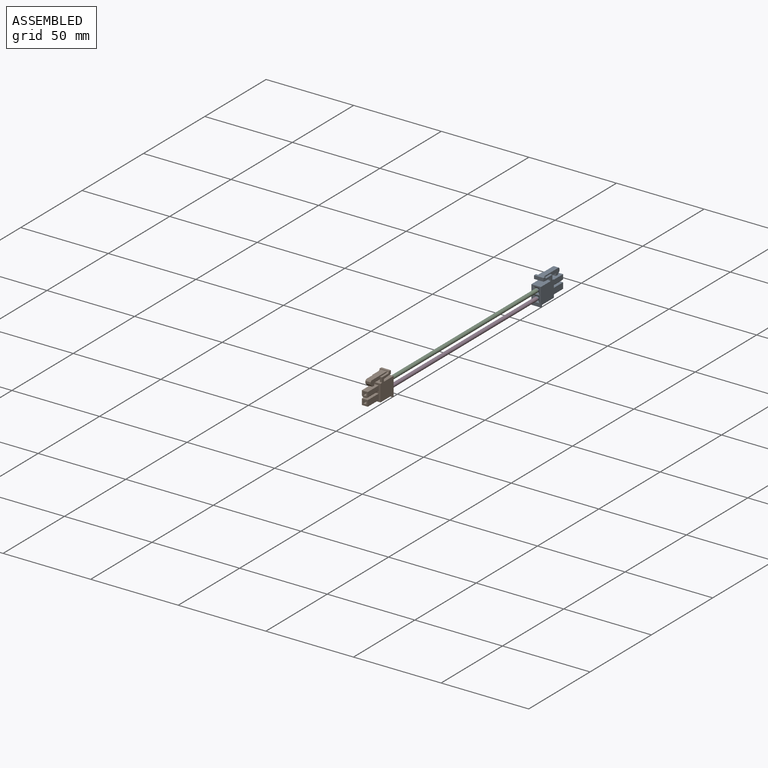
[diagram: assembled view]
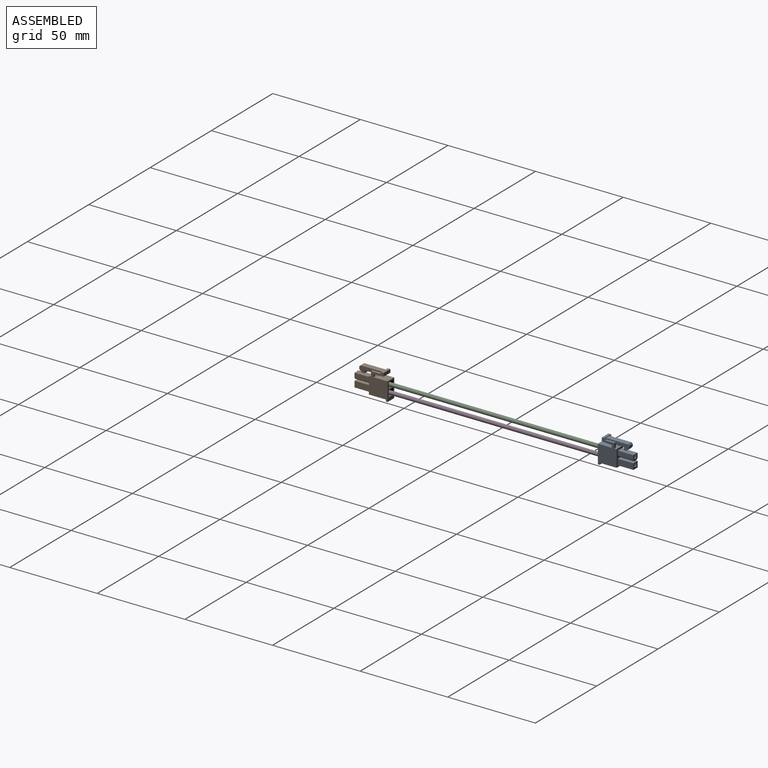
[diagram: assembled view, second angle]
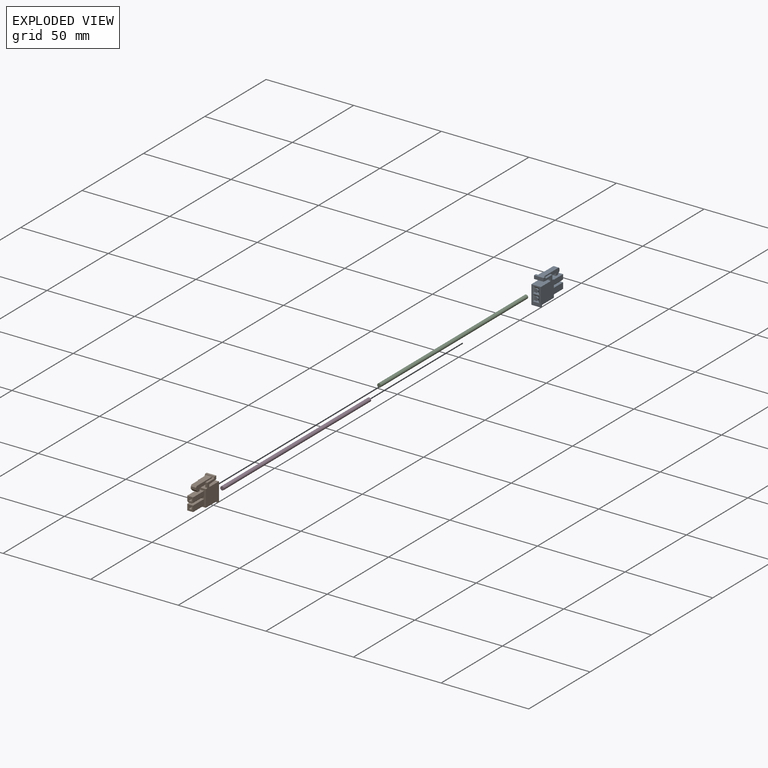
[diagram: exploded view]
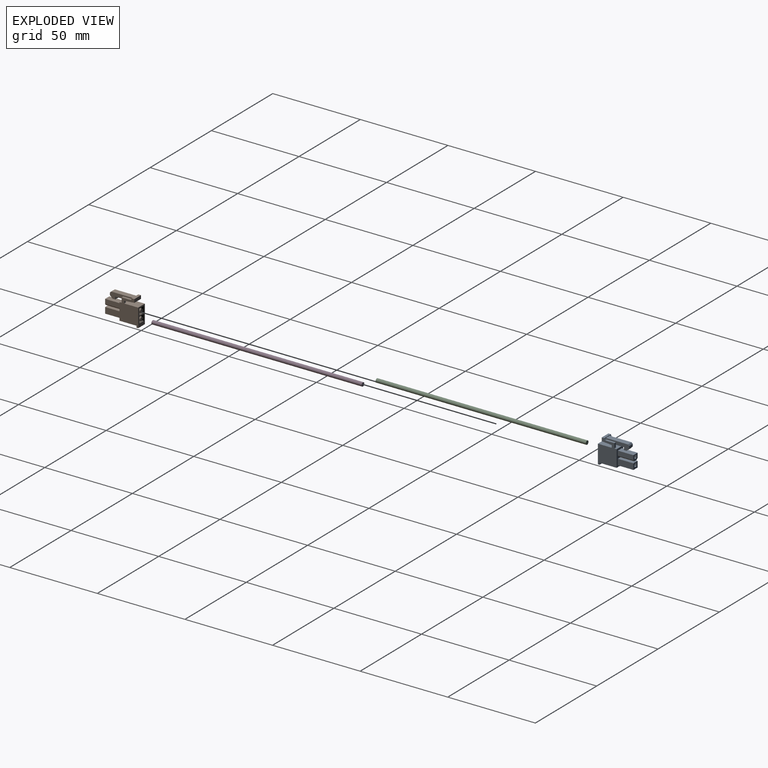
[diagram: exploded view, second angle]
ASSEMBLY  parts=4 mates=4
PART A: 117 faces, bbox 5.4x14.4x19.6 mm
  f0: plane 17.6x0.38mm, normal (0.71,0.71,0), area 5.9mm2, adj f1,f52,f77,f103,f108,f115
  f1: plane 17.6x0.75mm, normal (0,1,0), area 13.2mm2, adj f0,f2,f52,f115
  f2: plane 17.6x0.38mm, normal (-0.71,0.71,0), area 5.9mm2, adj f1,f52,f78,f96,f104,f115
  f3: plane 17.6x0.38mm, normal (0.71,0.71,0), area 5.9mm2, adj f5,f51,f67,f73,f84,f112
  f4: plane 17.6x0.38mm, normal (-0.71,0.71,0), area 5.9mm2, adj f5,f51,f74,f83,f85,f112
  f5: plane 17.6x0.75mm, normal (0,1,0), area 13.2mm2, adj f3,f4,f51,f112
  f6: plane 14.4x10.7mm, normal (-1,0,0), area 116.3mm2, adj f7,f9,f11,f13,f15,f18,f20,f25
  f7: plane 10.7x5.4mm, normal (0,1,0), area 52.7mm2, adj f6,f8,f9,f10,f16,f17,f18,f23
  f8: cylinder r=0.3mm len=1.2mm, axis (1,0,0), area 0.6mm2, adj f7,f10,f14,f16
  f9: cylinder r=0.3mm len=1.2mm, axis (1,0,0), area 0.6mm2, adj f6,f7,f15,f23
  f10: plane 3.13x1.5mm, normal (-1,0,0), area 2.4mm2, adj f7,f8,f11,f12,f14,f17,f19,f22
  f11: plane 5.57x5.4mm, normal (0,-1,-0.09), area 26.7mm2, adj f6,f10,f12,f13,f16,f22,f23,f37
  f12: cylinder r=0.2mm len=1.2mm, axis (1,0,0), area 0.4mm2, adj f10,f11,f14,f16
  f13: cylinder r=0.2mm len=1.2mm, axis (1,0,0), area 0.4mm2, adj f6,f11,f15,f23
  f14: plane 1.2x0.9mm, normal (0,0,-1), area 1.1mm2, adj f8,f10,f12,f16
  f15: plane 1.2x0.9mm, normal (0,0,-1), area 1.1mm2, adj f6,f9,f13,f23
  f16: plane 14.4x10.7mm, normal (1,0,0), area 116.3mm2, adj f7,f8,f11,f12,f14,f17,f19,f26
  f17: cylinder r=0.3mm len=1.2mm, axis (1,0,0), area 0.6mm2, adj f7,f10,f16,f19
  f18: cylinder r=0.3mm len=1.2mm, axis (1,0,0), area 0.6mm2, adj f6,f7,f20,f23
  f19: plane 2.5x1.2mm, normal (0,0,1), area 3mm2, adj f10,f16,f17,f21,f26
  f20: plane 2.5x1.2mm, normal (0,0,1), area 3mm2, adj f6,f18,f23,f24,f25
  f21: plane 13.3x3.5mm, normal (1,0,0), area 22mm2, adj f19,f22,f26,f28,f30,f31,f32,f33
  f22: plane 7.52x3mm, normal (0,-1,0), area 22.5mm2, adj f10,f11,f21,f23,f24,f35
  f23: plane 3.13x1.5mm, normal (1,0,0), area 2.4mm2, adj f7,f9,f11,f13,f15,f18,f20,f22
  f24: plane 13.3x3.5mm, normal (-1,0,0), area 22mm2, adj f20,f22,f25,f27,f30,f31,f32,f33
  f25: plane 5.25x1.2mm, normal (0,1,0), area 6.3mm2, adj f6,f20,f24,f27
  f26: plane 5.25x1.2mm, normal (0,1,0), area 6.3mm2, adj f16,f19,f21,f28
  f27: plane 1.2x0.7mm, normal (0,0.58,0.81), area 1mm2, adj f6,f24,f25,f29
  f28: plane 1.2x0.7mm, normal (0,0.58,0.81), area 1mm2, adj f16,f21,f26,f29
  f29: plane 5.4x0.3mm, normal (0,0,1), area 1.6mm2, adj f6,f16,f27,f28,f30,f36
  f30: plane 12.6x3mm, normal (0,1,0), area 37.8mm2, adj f21,f24,f29,f31
  f31: plane 3x0.7mm, normal (0,0.71,0.71), area 3mm2, adj f21,f24,f30,f32
  f32: plane 3x1.3mm, normal (0,0,1), area 3.9mm2, adj f21,f24,f31,f33
  f33: plane 3x1.5mm, normal (0,-0.71,0.71), area 6.4mm2, adj f21,f24,f32,f34
  f34: plane 3x1.5mm, normal (0,-1,0), area 4.5mm2, adj f21,f24,f33,f35
  f35: plane 3x1.5mm, normal (0,0.09,-1), area 4.5mm2, adj f21,f22,f24,f34
  f36: plane 5.4x1.5mm, normal (0,1,0), area 8.1mm2, adj f6,f16,f29,f37
  f37: plane 5.4x1.91mm, normal (0,0,-1), area 10.3mm2, adj f6,f11,f16,f36
  f38: plane 10.6x5.4mm, normal (0,0,-1), area 31.3mm2, adj f6,f7,f16,f39,f68,f69,f70,f71
  f39: plane 5.4x1mm, normal (0,-1,0), area 5.4mm2, adj f6,f16,f38,f40
  f40: plane 5.4x1mm, normal (0,0,1), area 5.3mm2, adj f6,f16,f39,f41,f42,f43
  f41: cylinder r=0.25mm len=9.7mm, axis (0,0,-1), area 7.6mm2, adj f40,f42,f43,f44
  f42: plane 9.7x2.45mm, normal (0,-1,0), area 23.8mm2, adj f16,f40,f41,f44
  f43: plane 9.7x2.45mm, normal (0,-1,0), area 23.8mm2, adj f6,f40,f41,f44
  f44: plane 9.85x5.4mm, normal (0,0,1), area 29.4mm2, adj f6,f7,f16,f41,f42,f43,f45,f46
  f45: plane 8.9x2.65mm, normal (-1,0,0), area 23.6mm2, adj f44,f46,f50,f51
  f46: plane 8.9x3.4mm, normal (0,1,0), area 30.3mm2, adj f44,f45,f47,f51
  f47: plane 8.9x2.65mm, normal (1,0,0), area 23.6mm2, adj f44,f46,f48,f51
  f48: plane 8.9x0.75mm, normal (0.71,-0.71,0), area 9.4mm2, adj f44,f47,f49,f51
  f49: plane 8.9x1.9mm, normal (0,-1,0), area 16.9mm2, adj f44,f48,f50,f51
  f50: plane 8.9x0.75mm, normal (-0.71,-0.71,0), area 9.4mm2, adj f44,f45,f49,f51
  f51: plane 3.4x3.4mm, normal (0,0,1), area 8.2mm2, adj f3,f4,f5,f45,f46,f47,f48,f49
  f52: plane 3.4x3.4mm, normal (0,0,1), area 8.7mm2, adj f0,f1,f2,f53,f54,f55,f56,f90
  f53: plane 8.9x3.4mm, normal (0,-1,0), area 30.3mm2, adj f44,f52,f54,f56
  f54: plane 8.9x3.4mm, normal (-1,0,0), area 30.3mm2, adj f44,f52,f53,f55
  f55: plane 8.9x3.4mm, normal (0,1,0), area 30.3mm2, adj f44,f52,f54,f56
  f56: plane 8.9x3.4mm, normal (1,0,0), area 30.3mm2, adj f44,f52,f53,f55
  f57: plane 9.9x0.5mm, normal (1,0,0), area 5mm2, adj f51,f59,f61,f63
  f58: plane 9.9x0.15mm, normal (0,-1,0), area 1mm2, adj f51,f60,f64,f76,f83,f89
  f59: plane 9.9x0.15mm, normal (0,-1,0), area 1mm2, adj f51,f57,f63,f67,f75,f87
  f60: plane 9.9x0.5mm, normal (-1,0,0), area 5mm2, adj f51,f58,f62,f64
  f61: plane 9.9x0.15mm, normal (0,1,0), area 1mm2, adj f51,f57,f63,f67,f73,f86
  f62: plane 9.9x0.15mm, normal (0,1,0), area 1mm2, adj f51,f60,f64,f74,f83,f88
  f63: plane 0.5x0.15mm, normal (0,0,1), area 0.1mm2, adj f57,f59,f61,f67
  f64: plane 0.5x0.15mm, normal (0,0,1), area 0.1mm2, adj f58,f60,f62,f83
  f65: plane 0.5x0.15mm, normal (0,0,1), area 0.1mm2, adj f91,f93,f95,f96
  f66: plane 0.5x0.15mm, normal (0,0,1), area 0.1mm2, adj f90,f92,f94,f108
  f67: plane 9.7x1.38mm, normal (1,0,0), area 11.6mm2, adj f3,f59,f61,f63,f68,f72,f73,f75
  f68: plane 3.65x1.05mm, normal (0.69,0,-0.72), area 3.4mm2, adj f38,f67,f69,f71,f81,f111
  f69: plane 3.6x1mm, normal (0,0.72,-0.69), area 3.3mm2, adj f38,f68,f70,f81,f82,f111
  f70: plane 3.65x1.05mm, normal (-0.69,0,-0.72), area 3.4mm2, adj f38,f69,f71,f82,f83,f111
  f71: plane 3.6x1mm, normal (0,-0.72,-0.69), area 3.3mm2, adj f38,f68,f70,f72,f111
  f72: plane 18.6x1.6mm, normal (0,-1,0), area 27.5mm2, adj f51,f67,f71,f75,f76,f83,f87,f89
  f73: plane 0.65x0.33mm, normal (0,0,1), area 0.1mm2, adj f3,f61,f67,f84,f86
  f74: plane 0.65x0.33mm, normal (0,0,1), area 0.1mm2, adj f4,f62,f83,f85,f88
  f75: plane 0.5x0.05mm, normal (0,0,1), area 0mm2, adj f59,f67,f72,f87
  f76: plane 0.5x0.05mm, normal (0,0,1), area 0mm2, adj f58,f72,f83,f89
  f77: plane 0.65x0.33mm, normal (0,0,1), area 0.1mm2, adj f0,f90,f103,f105,f108
  f78: plane 0.65x0.33mm, normal (0,0,1), area 0.1mm2, adj f2,f91,f96,f104,f109
  f79: plane 0.5x0.05mm, normal (0,0,1), area 0mm2, adj f94,f106,f107,f108
  f80: plane 0.5x0.05mm, normal (0,0,1), area 0mm2, adj f93,f96,f107,f110
  f81: plane 0.13x0.11mm, normal (0,0,-1), area 0mm2, adj f68,f69,f111
  f82: plane 0.13x0.11mm, normal (0,0,-1), area 0mm2, adj f69,f70,f111
  f83: plane 9.7x1.38mm, normal (-1,0,0), area 11.6mm2, adj f4,f58,f62,f64,f70,f72,f74,f76
  f84: plane 8.9x0.33mm, normal (0,1,0), area 2.9mm2, adj f3,f51,f73,f86
  f85: plane 8.9x0.33mm, normal (0,1,0), area 2.9mm2, adj f4,f51,f74,f88
  f86: plane 8.9x0.65mm, normal (1,0,0), area 5.8mm2, adj f51,f61,f73,f84
  f87: plane 8.9x0.5mm, normal (1,0,0), area 4.5mm2, adj f51,f59,f72,f75
  f88: plane 8.9x0.65mm, normal (-1,0,0), area 5.8mm2, adj f51,f62,f74,f85
  f89: plane 8.9x0.5mm, normal (-1,0,0), area 4.5mm2, adj f51,f58,f72,f76
  f90: plane 9.9x0.15mm, normal (0,1,0), area 1mm2, adj f52,f66,f77,f92,f105,f108
  f91: plane 9.9x0.15mm, normal (0,1,0), area 1mm2, adj f52,f65,f78,f95,f96,f109
  f92: plane 9.9x0.5mm, normal (1,0,0), area 5mm2, adj f52,f66,f90,f94
  f93: plane 9.9x0.15mm, normal (0,-1,0), area 1mm2, adj f52,f65,f80,f95,f96,f110
  f94: plane 9.9x0.15mm, normal (0,-1,0), area 1mm2, adj f52,f66,f79,f92,f106,f108
  f95: plane 9.9x0.5mm, normal (-1,0,0), area 5mm2, adj f52,f65,f91,f93
  f96: plane 9.7x1.38mm, normal (-1,0,0), area 11.6mm2, adj f2,f65,f78,f80,f91,f93,f97,f107
  f97: plane 3.55x1.05mm, normal (-0.69,0,-0.72), area 3.4mm2, adj f38,f96,f98,f100,f102,f114
  f98: plane 3.6x1mm, normal (0,-0.74,-0.67), area 3.2mm2, adj f38,f97,f99,f107,f114
  f99: plane 3.55x1.05mm, normal (0.69,0,-0.72), area 3.4mm2, adj f38,f98,f100,f101,f108,f114
  f100: plane 3.6x1mm, normal (0,0.74,-0.67), area 3.2mm2, adj f38,f97,f99,f101,f102,f114
  f101: plane 0.13x0.11mm, normal (0,0,-1), area 0mm2, adj f99,f100,f114
  f102: plane 0.13x0.11mm, normal (0,0,-1), area 0mm2, adj f97,f100,f114
  f103: plane 8.9x0.33mm, normal (0,1,0), area 2.9mm2, adj f0,f52,f77,f105
  f104: plane 8.9x0.33mm, normal (0,1,0), area 2.9mm2, adj f2,f52,f78,f109
  f105: plane 8.9x0.65mm, normal (1,0,0), area 5.8mm2, adj f52,f77,f90,f103
  f106: plane 8.9x0.5mm, normal (1,0,0), area 4.5mm2, adj f52,f79,f94,f107
  f107: plane 18.6x1.6mm, normal (0,-1,0), area 27.5mm2, adj f52,f79,f80,f96,f98,f106,f108,f110
  f108: plane 9.7x1.38mm, normal (1,0,0), area 11.6mm2, adj f0,f66,f77,f79,f90,f94,f99,f107
  f109: plane 8.9x0.65mm, normal (-1,0,0), area 5.8mm2, adj f52,f78,f91,f104
  f110: plane 8.9x0.5mm, normal (-1,0,0), area 4.5mm2, adj f52,f80,f93,f107
  f111: cylinder r=1.07mm len=2.15mm, axis (0,0,-1), area 6mm2, adj f67,f68,f69,f70,f71,f72,f81,f82
  f112: plane 1.75x1.5mm, normal (0,0,1), area 2.5mm2, adj f3,f4,f5,f67,f72,f83,f111
  f113: plane 2.15x2.15mm, normal (0,0,-1), area 3.6mm2, adj f111
  f114: cylinder r=1.07mm len=2.15mm, axis (0,0,-1), area 6mm2, adj f96,f97,f98,f99,f100,f101,f102,f107
  f115: plane 1.75x1.5mm, normal (0,0,1), area 2.5mm2, adj f0,f1,f2,f96,f107,f108,f114
  f116: plane 2.15x2.15mm, normal (0,0,-1), area 3.6mm2, adj f114
PART B: same geometry as A
PART C: 3 faces, bbox 120x2.2x2.2 mm
  f0: cylinder r=1.07mm len=120mm, axis (-1,0,0), area 810.5mm2, adj f1,f2
  f1: plane 2.15x2.15mm, normal (1,0,0), area 3.6mm2, adj f0
  f2: plane 2.15x2.15mm, normal (-1,0,0), area 3.6mm2, adj f0
PART D: 3 faces, bbox 120x2.2x2.2 mm
  f0: cylinder r=1.07mm len=120mm, axis (-1,0,0), area 810.5mm2, adj f1,f2
  f1: plane 2.15x2.15mm, normal (1,0,0), area 3.6mm2, adj f0
  f2: plane 2.15x2.15mm, normal (-1,0,0), area 3.6mm2, adj f0
PLACE A rot(axis=(0,-0.71,-0.71),180deg) t=(0.25,73.4,-0.39)mm
PLACE B rot(axis=(1,0,0),90deg) t=(0.25,-68,-0.39)mm
PLACE C rot(axis=(0.58,-0.58,-0.58),120deg) t=(-1.91,2.7,1.78)mm
PLACE D rot(axis=(0.58,-0.58,-0.58),120deg) t=(0.25,2.7,-2.42)mm
MATE fastened B.f114 <-> D.f0  axis (0,1,0) through (0.25,-57.3,-2.42)mm
MATE fastened C.f0 <-> A.f111  axis (0,1,0) through (0.25,62.7,1.78)mm
MATE fastened A.f114 <-> D.f0  axis (0,-1,0) through (0.25,62.7,-2.42)mm
MATE fastened B.f111 <-> C.f0  axis (0,1,0) through (0.25,-57.3,1.78)mm
